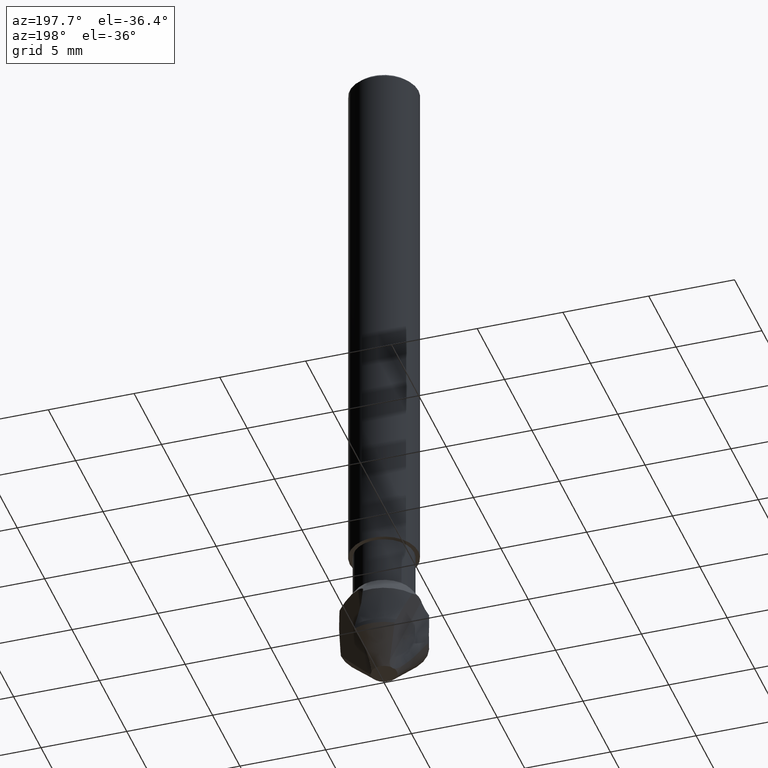
[diagram: clean part render]
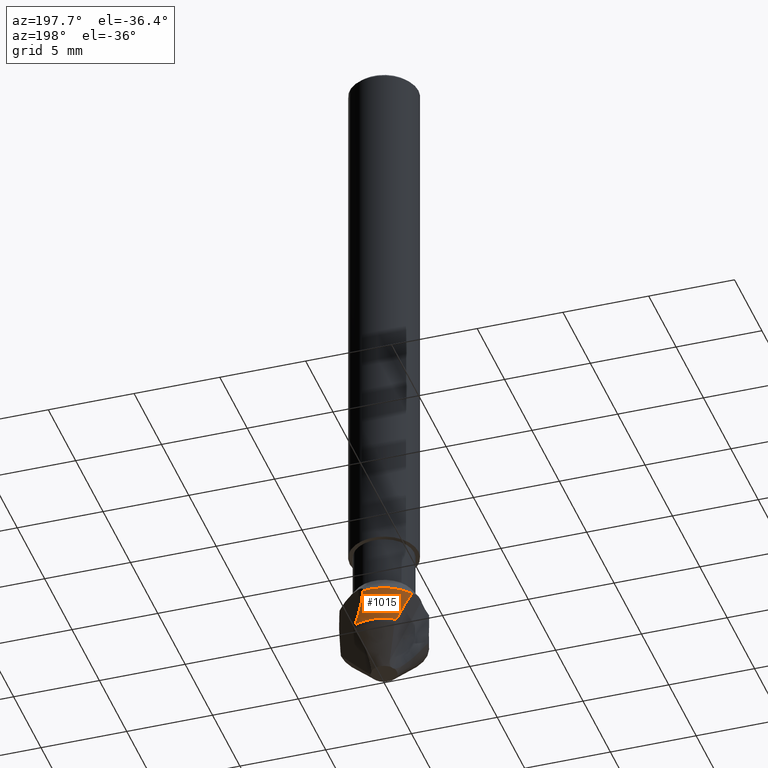
[diagram: same view with one face highlighted and labeled with its STEP entity id]
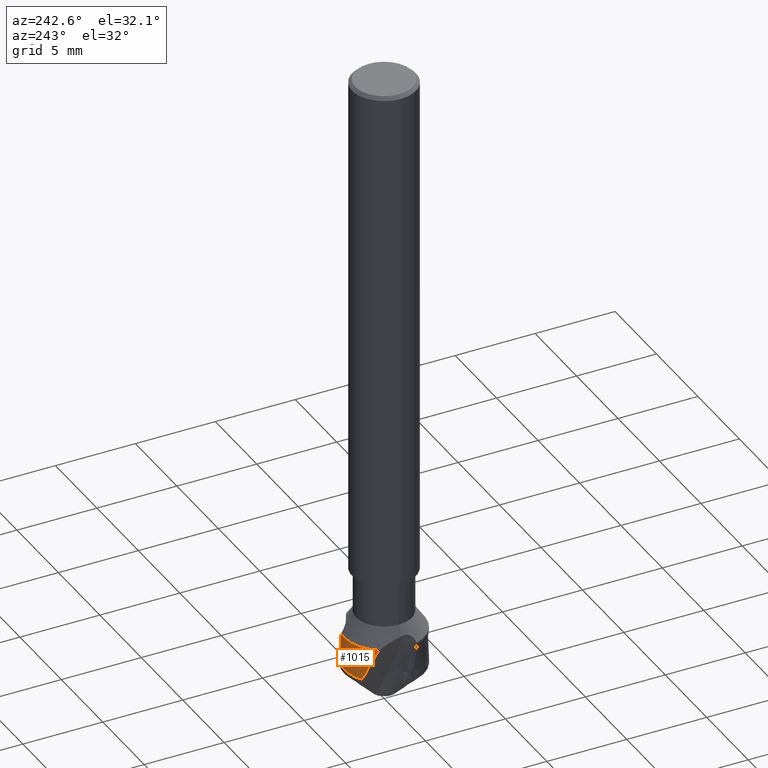
[diagram: same view with one face highlighted and labeled with its STEP entity id]
A machine part, auxiliary view. The second image highlights one B-rep face of the part: STEP entity #1015.
A second angle (auxiliary view) of the same face is appended — the face is thin or edge-on in the first view.
In plain terms, the highlighted face is a freeform B-spline surface patch.
Its self-contained STEP definition (entity closure, byte-faithful):
#352 = VERTEX_POINT('', #353);
#353 = CARTESIAN_POINT('', (0.463392612056944, 2.45667810001454, -35.9));
#402 = EDGE_CURVE('', #403, #352, #405, .T.);
#403 = VERTEX_POINT('', #404);
#404 = CARTESIAN_POINT('', (-2.08167548892202, 1.3844230418558, -35.9));
#405 = CIRCLE('', #406, 2.5);
#406 = AXIS2_PLACEMENT_3D('', #407, #408, #409);
#407 = CARTESIAN_POINT('', (1.34603440493902E-31, 2.1982410044695E-15, -35.9));
#408 = DIRECTION('', (3.74939945665464E-33, 6.12323399573677E-17, -1.));
#409 = DIRECTION('', (-1., 6.12323399573677E-17, 0.));
#588 = VERTEX_POINT('', #589);
#589 = CARTESIAN_POINT('', (-1.38475501394607, 2.08145467194251, -38.));
#603 = EDGE_CURVE('', #588, #403, #604, .T.);
#604 = B_SPLINE_CURVE_WITH_KNOTS('', 3, (#605, #606, #607, #608, #609, #610, #611, #612, #613, #614, #615, #616, #617, #618, #619, #620, #621, #622, #623, #624, #625, #626), .UNSPECIFIED., .F., .U., (4, 3, 3, 3, 3, 3, 3, 4), (0.270055081953057, 0.443501065638301, 0.886979311584911, 1.33043143405227, 1.77385233297349, 2.06942797840789, 2.36498571303068, 2.59401499840301), .UNSPECIFIED.);
#605 = CARTESIAN_POINT('', (-1.38475501394607, 2.08145467194251, -38.));
#606 = CARTESIAN_POINT('', (-1.40312087148029, 2.06923619144964, -37.9465582920268));
#607 = CARTESIAN_POINT('', (-1.4214329384005, 2.05670290312692, -37.893164836335));
#608 = CARTESIAN_POINT('', (-1.43968493311494, 2.04384620100483, -37.8398339631085));
#609 = CARTESIAN_POINT('', (-1.48635284913702, 2.01097332851383, -37.7034740335743));
#610 = CARTESIAN_POINT('', (-1.53264494469138, 1.97597917582604, -37.5674753783297));
#611 = CARTESIAN_POINT('', (-1.57848409163049, 1.93865622854328, -37.4319824976008));
#612 = CARTESIAN_POINT('', (-1.62432053837402, 1.90133547980183, -37.2964975982001));
#613 = CARTESIAN_POINT('', (-1.66971726772751, 1.86167741484115, -37.1614800593052));
#614 = CARTESIAN_POINT('', (-1.71457105486145, 1.81940817241002, -37.0271244675855));
#615 = CARTESIAN_POINT('', (-1.75942168383193, 1.77714190616408, -36.8927783358679));
#616 = CARTESIAN_POINT('', (-1.80374636098516, 1.73225212900376, -36.7590443938803));
#617 = CARTESIAN_POINT('', (-1.84740179788464, 1.68437127652208, -36.6261966385976));
#618 = CARTESIAN_POINT('', (-1.87650165305537, 1.6524548424734, -36.5376429391493));
#619 = CARTESIAN_POINT('', (-1.9053108122508, 1.61919957972099, -36.4494619396829));
#620 = CARTESIAN_POINT('', (-1.93377174334233, 1.58446421374905, -36.3617656012672));
#621 = CARTESIAN_POINT('', (-1.96223094980471, 1.54973095261426, -36.2740745769313));
#622 = CARTESIAN_POINT('', (-1.99034994688215, 1.51350916128566, -36.1868439255083));
#623 = CARTESIAN_POINT('', (-2.0180532671123, 1.47562224539315, -36.1002232047599));
#624 = CARTESIAN_POINT('', (-2.0395207196317, 1.44626346957598, -36.0331003402652));
#625 = CARTESIAN_POINT('', (-2.060743347017, 1.41589747229861, -35.9663285295834));
#626 = CARTESIAN_POINT('', (-2.08167548892202, 1.3844230418558, -35.9));
#702 = VERTEX_POINT('', #703);
#703 = CARTESIAN_POINT('', (0.762091993232627, 2.38101150645072, -37.4382753769953));
#709 = EDGE_CURVE('', #702, #352, #710, .T.);
#710 = B_SPLINE_CURVE_WITH_KNOTS('', 3, (#711, #712, #713, #714, #715, #716, #717, #718, #719, #720, #721, #722, #723, #724, #725, #726, #727, #728, #729, #730, #731, #732), .UNSPECIFIED., .F., .U., (4, 3, 3, 3, 3, 3, 3, 4), (0., 0.197263925134528, 0.394465455670501, 0.591618066555737, 0.788730326212329, 1.08436332961744, 1.37989034220543, 1.57529608879505), .UNSPECIFIED.);
#711 = CARTESIAN_POINT('', (0.762091993232627, 2.38101150645072, -37.4382753769953));
#712 = CARTESIAN_POINT('', (0.739745439089804, 2.38816398343055, -37.3768494337986));
#713 = CARTESIAN_POINT('', (0.718697127621448, 2.3945560008586, -37.3148445650071));
#714 = CARTESIAN_POINT('', (0.698926883685302, 2.40031273197115, -37.2523972239252));
#715 = CARTESIAN_POINT('', (0.679162893079221, 2.40606764222909, -37.1899696349432));
#716 = CARTESIAN_POINT('', (0.660665735538491, 2.4111904692124, -37.1270670510548));
#717 = CARTESIAN_POINT('', (0.643415124506863, 2.41578496095075, -37.063803750101));
#718 = CARTESIAN_POINT('', (0.626168792822683, 2.42037831293664, -37.0005561428317));
#719 = CARTESIAN_POINT('', (0.610160344140909, 2.42444554754424, -36.9369188558734));
#720 = CARTESIAN_POINT('', (0.595371538732543, 2.42807181336699, -36.8729897068482));
#721 = CARTESIAN_POINT('', (0.580585760149263, 2.43169733700184, -36.809073642203));
#722 = CARTESIAN_POINT('', (0.567012867001075, 2.4348834563797, -36.7448393604044));
#723 = CARTESIAN_POINT('', (0.554639054164249, 2.43769881642417, -36.6803723960478));
#724 = CARTESIAN_POINT('', (0.536080556286457, 2.44192135107049, -36.5836835227816));
#725 = CARTESIAN_POINT('', (0.520204214632627, 2.44531583471461, -36.4864042028418));
#726 = CARTESIAN_POINT('', (0.506995388460372, 2.44805140388839, -36.3887874551585));
#727 = CARTESIAN_POINT('', (0.493791297937598, 2.45078599230154, -36.2912057051877));
#728 = CARTESIAN_POINT('', (0.483240186928818, 2.45286421628106, -36.193207548306));
#729 = CARTESIAN_POINT('', (0.475389729132014, 2.45438477126872, -36.0950236283771));
#730 = CARTESIAN_POINT('', (0.470198919150141, 2.4553901791331, -36.0301033288459));
#731 = CARTESIAN_POINT('', (0.466187497635342, 2.45615091278209, -35.9650731229671));
#732 = CARTESIAN_POINT('', (0.46339261205638, 2.45667810001465, -35.9));
#1015 = ADVANCED_FACE('', (#1016), #1040, .T.);
#1016 = FACE_OUTER_BOUND('', #1017, .T.);
#1017 = EDGE_LOOP('', (#1018, #1027, #1028, #1029, #1030));
#1018 = ORIENTED_EDGE('', *, *, #1019, .F.);
#1019 = EDGE_CURVE('', #588, #1020, #1022, .T.);
#1020 = VERTEX_POINT('', #1021);
#1021 = CARTESIAN_POINT('', (0.958582170868705, 2.30892187431551, -38.));
#1022 = CIRCLE('', #1023, 2.5);
#1023 = AXIS2_PLACEMENT_3D('', #1024, #1025, #1026);
#1024 = CARTESIAN_POINT('', (1.42477179352876E-31, 2.32682891837997E-15, -38.));
#1025 = DIRECTION('', (3.74939945665464E-33, 6.12323399573677E-17, -1.));
#1026 = DIRECTION('', (-1., 6.12323399573677E-17, 0.));
#1027 = ORIENTED_EDGE('', *, *, #603, .T.);
#1028 = ORIENTED_EDGE('', *, *, #402, .T.);
#1029 = ORIENTED_EDGE('', *, *, #709, .F.);
#1030 = ORIENTED_EDGE('', *, *, #1031, .T.);
#1031 = EDGE_CURVE('', #702, #1020, #1032, .T.);
#1032 = B_SPLINE_CURVE_WITH_KNOTS('', 3, (#1033, #1034, #1035, #1036, #1037, #1038, #1039), .UNSPECIFIED., .F., .U., (4, 3, 4), (0., 0.443592313159191, 0.599463094366123), .UNSPECIFIED.);
#1033 = CARTESIAN_POINT('', (0.762091993232627, 2.38101150645072, -37.4382753769953));
#1034 = CARTESIAN_POINT('', (0.81234324741705, 2.36492755290405, -37.5764054289651));
#1035 = CARTESIAN_POINT('', (0.861227490245584, 2.34753065174174, -37.714891002401));
#1036 = CARTESIAN_POINT('', (0.908847045113553, 2.32894762684564, -37.8536384079475));
#1037 = CARTESIAN_POINT('', (0.925579745383166, 2.32241786850264, -37.9023918823685));
#1038 = CARTESIAN_POINT('', (0.942157301305474, 2.31574089547742, -37.9511814903886));
#1039 = CARTESIAN_POINT('', (0.958582170868705, 2.30892187431551, -38.));
#1040 = (
   BOUNDED_SURFACE ()
   B_SPLINE_SURFACE (2, 1, ((#1041, #1042), (#1043, #1044), (#1045, #1046), (#1047, #1048), (#1049, #1050), (#1051, #1052), (#1053, #1054), (#1055, #1056), (#1057, #1058)), .UNSPECIFIED., .F., .F., .U.)
   B_SPLINE_SURFACE_WITH_KNOTS ((3, 2, 2, 2, 3), (2, 2), (1.49143637316663, 3.92699081698724, 7.85398163397448, 11.7809724509617, 15.3557267720066), (0., 0.893617021276596), .UNSPECIFIED.)
   GEOMETRIC_REPRESENTATION_ITEM ()
   RATIONAL_B_SPLINE_SURFACE (((0.862018102276774, 0.862018102276774), (0.818345034686557, 0.818345034686557), (1., 1.), (0.707106781186548, 0.707106781186548), (1., 1.), (0.707106781186548, 0.707106781186548), (1., 1.), (0.733378215444515, 0.733378215444515), (0.952170031705974, 0.952170031705974)))
   REPRESENTATION_ITEM ('')
   SURFACE ()
);
#1041 = CARTESIAN_POINT('', (-2.08167548892202, 1.3844230418558, -35.9));
#1042 = CARTESIAN_POINT('', (-2.08167548892202, 1.3844230418558, -38.));
#1043 = CARTESIAN_POINT('', (-1.33975848310763, 2.5, -35.9));
#1044 = CARTESIAN_POINT('', (-1.33975848310763, 2.5, -38.));
#1045 = CARTESIAN_POINT('', (1.23259516440783E-31, 2.5, -35.9));
#1046 = CARTESIAN_POINT('', (1.4791141972894E-31, 2.5, -38.));
#1047 = CARTESIAN_POINT('', (2.5, 2.5, -35.9));
#1048 = CARTESIAN_POINT('', (2.5, 2.5, -38.));
#1049 = CARTESIAN_POINT('', (2.5, 2.35132185436292E-15, -35.9));
#1050 = CARTESIAN_POINT('', (2.5, 2.47990976827339E-15, -38.));
#1051 = CARTESIAN_POINT('', (2.5, -2.5, -35.9));
#1052 = CARTESIAN_POINT('', (2.5, -2.5, -38.));
#1053 = CARTESIAN_POINT('', (3.06161699786838E-16, -2.5, -35.9));
#1054 = CARTESIAN_POINT('', (3.06161699786838E-16, -2.5, -38.));
#1055 = CARTESIAN_POINT('', (-2.19423591655167, -2.5, -35.9));
#1056 = CARTESIAN_POINT('', (-2.19423591655167, -2.5, -38.));
#1057 = CARTESIAN_POINT('', (-2.47887608394516, -0.32430442557062, -35.9));
#1058 = CARTESIAN_POINT('', (-2.47887608394516, -0.32430442557062, -38.));